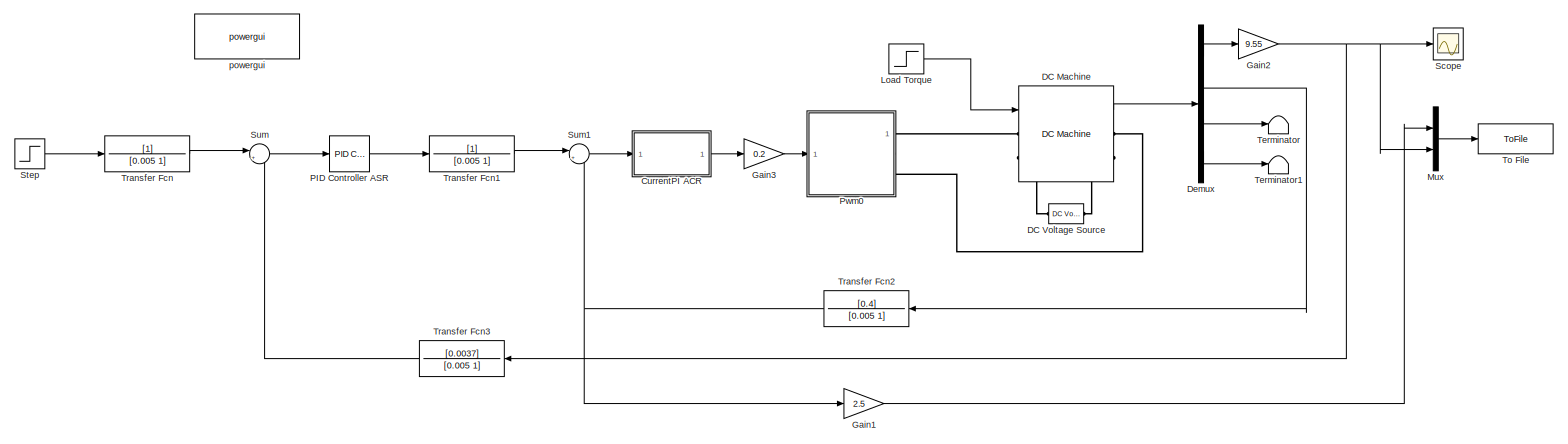
[diagram: root canvas - part 1/1, most of the canvas]
MODEL slx_1d7dbdc2e73e
KIND model
CONFIG AbsTol = auto
CONFIG EnableMultiTasking = off
CONFIG FixedStep = auto
CONFIG MaxStep = 5e-006
CONFIG MinStep = auto
CONFIG RelTol = 1e-3
CONFIG SampleTimeConstraint = Unconstrained
CONFIG Solver = ode23tb
CONFIG SolverName = ode23tb
CONFIG StartTime = 0.0
CONFIG StopTime = 4.0
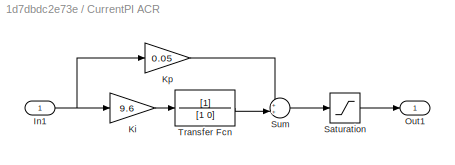
BLOCK [SubSystem] CurrentPI ACR
  Ports = [1, 1]
  RequestExecContextInheritance = off
BLOCK [Inport] CurrentPI ACR/In1
  IconDisplay = Port number
BLOCK [Gain] CurrentPI ACR/Ki 
  Gain = 9.6
  OutDataTypeStr = Inherit: Inherit via internal rule
  ParamDataTypeStr = Inherit: Inherit via internal rule
  SaturateOnIntegerOverflow = off
BLOCK [Gain] CurrentPI ACR/Kp
  Gain = 0.05
  OutDataTypeStr = Inherit: Inherit via internal rule
  ParamDataTypeStr = Inherit: Inherit via internal rule
  SaturateOnIntegerOverflow = off
BLOCK [Outport] CurrentPI ACR/Out1
  IconDisplay = Port number
BLOCK [Saturate] CurrentPI ACR/Saturation
  InputPortMap = u0
  LowerLimit = -5
  Ports = [1, 1]
  UpperLimit = 5
BLOCK [Sum] CurrentPI ACR/Sum
  IconShape = round
  InputSameDT = off
  Inputs = ++|
  OutDataTypeStr = Inherit: Inherit via internal rule
  Ports = [2, 1]
  SaturateOnIntegerOverflow = off
BLOCK [TransferFcn] CurrentPI ACR/Transfer Fcn
  Denominator = [1 0]
BLOCK [Reference] DC Machine  REF=powerlib/Machines/DC Machine
  Ports = [1, 1, 0, 0, 0, 2, 2]
  SourceBlock = powerlib/Machines/DC Machine
  SourceProductBaseCode = PS
  SourceProductName = Simscape Power Systems
  SourceType = DC machine
BLOCK [Reference] DC Voltage Source  REF=powerlib/Electrical
Sources/DC Voltage Source
  Ports = [0, 0, 0, 0, 0, 1, 1]
  SourceBlock = powerlib/Electrical\nSources/DC Voltage Source
  SourceProductBaseCode = PS
  SourceProductName = Simscape Power Systems
  SourceType = DC Voltage Source
BLOCK [Demux] Demux
  DisplayOption = bar
  Ports = [1, 4]
BLOCK [Gain] Gain1
  Gain = 2.5
  OutDataTypeStr = Inherit: Inherit via internal rule
  ParamDataTypeStr = Inherit: Inherit via internal rule
  SaturateOnIntegerOverflow = off
BLOCK [Gain] Gain2
  Gain = 9.55
  OutDataTypeStr = Inherit: Inherit via internal rule
  ParamDataTypeStr = Inherit: Inherit via internal rule
  SaturateOnIntegerOverflow = off
BLOCK [Gain] Gain3
  Gain = 0.2
  OutDataTypeStr = Inherit: Inherit via internal rule
  ParamDataTypeStr = Inherit: Inherit via internal rule
  SaturateOnIntegerOverflow = off
BLOCK [Step] Load Torque
  After = 12
  Before = 6
  SampleTime = 0
  Time = 3
BLOCK [Mux] Mux
  DisplayOption = bar
  Inputs = 2
  Ports = [2, 1]
BLOCK [Reference] PID Controller ASR  REF=simulink/Continuous/PID Controller
  Ports = [1, 1]
  SourceBlock = simulink/Continuous/PID Controller
  SourceProductBaseCode = SL
  SourceProductName = Simulink
  SourceType = PID 1dof
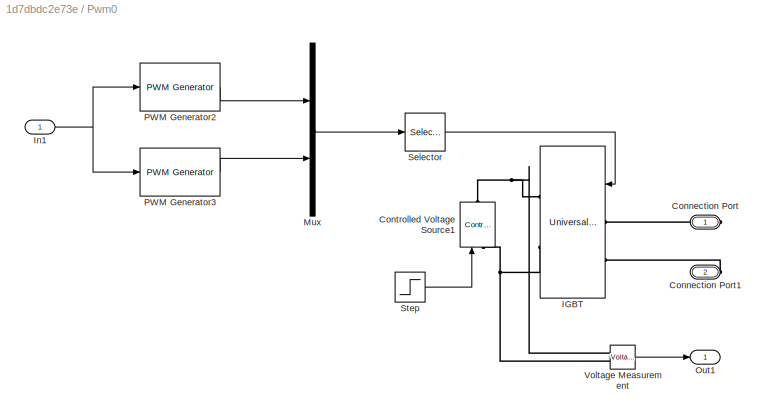
BLOCK [SubSystem] Pwm0
  Ports = [1, 1, 0, 0, 0, 0, 2]
  RequestExecContextInheritance = off
BLOCK [PMIOPort] Pwm0/Connection Port
  Side = Right
BLOCK [PMIOPort] Pwm0/Connection Port1
  Port = 2
  Side = Right
BLOCK [Reference] Pwm0/Controlled Voltage Source1  REF=powerlib/Electrical
Sources/Controlled Voltage Source
  Ports = [1, 0, 0, 0, 0, 1, 1]
  SourceBlock = powerlib/Electrical\nSources/Controlled Voltage Source
  SourceProductBaseCode = PS
  SourceProductName = Simscape Power Systems
  SourceType = Controlled Voltage Source
BLOCK [Reference] Pwm0/IGBT  REF=powerlib/Power
Electronics/Universal Bridge
  Ports = [1, 0, 0, 0, 0, 2, 2]
  SourceBlock = powerlib/Power\nElectronics/Universal Bridge
  SourceProductBaseCode = PS
  SourceProductName = Simscape Power Systems
  SourceType = Universal Bridge
BLOCK [Inport] Pwm0/In1
  IconDisplay = Port number
BLOCK [Mux] Pwm0/Mux
  DisplayOption = bar
  Inputs = 2
  Ports = [2, 1]
BLOCK [Outport] Pwm0/Out1
  IconDisplay = Port number
BLOCK [Reference] Pwm0/PWM Generator2  REF=powerlib_extras/Control 
Blocks/PWM Generator
  Ports = [1, 1]
  SourceBlock = powerlib_extras/Control \nBlocks/PWM Generator
  SourceType = PWM Generator
BLOCK [Reference] Pwm0/PWM Generator3  REF=powerlib_extras/Control 
Blocks/PWM Generator
  Ports = [1, 1]
  SourceBlock = powerlib_extras/Control \nBlocks/PWM Generator
  SourceType = PWM Generator
BLOCK [Selector] Pwm0/Selector
  IndexOptions = Index vector (dialog)
  Indices = [1 2 4 3]
  InputPortWidth = 4
  OutputSizes = 1
  Ports = [1, 1]
BLOCK [Step] Pwm0/Step
  After = 250
  SampleTime = 0
  Time = 0
BLOCK [Reference] Pwm0/Voltage Measurement  REF=powerlib/Measurements/Voltage Measurement
  Ports = [0, 1, 0, 0, 0, 2]
  SourceBlock = powerlib/Measurements/Voltage Measurement
  SourceProductBaseCode = PS
  SourceProductName = Simscape Power Systems
  SourceType = Voltage Measurement
  UserDataPersistent = on
BLOCK [Scope] Scope
  Floating = off
  NumInputPorts = 1
  Ports = [1]
  ScopeSpecificationString = Simulink.scopes.TimeScopeBlockCfg('CurrentConfiguration', extmgr.ConfigurationSet(extmgr.Configuration('Core','General UI',true),extmgr.Configuration('Core','Source UI',true),extmgr.Configuration('Sources','WiredSimulink',true),extmgr.Configuration('Visuals','Time Domain',true),extmgr.Configuration('Tools','Plot Navigation',true),extmgr.Configuration('Tools','Measurements',true)),'Version','2018a'...<+1ch>
BLOCK [Step] Step
  After = 5
  SampleTime = 0
  Time = 0
BLOCK [Sum] Sum
  IconShape = round
  InputSameDT = off
  Inputs = |+-
  OutDataTypeStr = Inherit: Inherit via internal rule
  Ports = [2, 1]
  SaturateOnIntegerOverflow = off
BLOCK [Sum] Sum1
  IconShape = round
  InputSameDT = off
  Inputs = |+-
  OutDataTypeStr = Inherit: Inherit via internal rule
  Ports = [2, 1]
  SaturateOnIntegerOverflow = off
BLOCK [Terminator] Terminator
BLOCK [Terminator] Terminator1
BLOCK [ToFile] To File
  Filename = 3_sim_n_Ia.mat
  MatrixName = signals
  Ports = [1]
BLOCK [TransferFcn] Transfer Fcn
  Denominator = [0.005 1]
BLOCK [TransferFcn] Transfer Fcn1
  Denominator = [0.005 1]
BLOCK [TransferFcn] Transfer Fcn2
  Denominator = [0.005 1]
  Numerator = [0.4]
BLOCK [TransferFcn] Transfer Fcn3
  Denominator = [0.005 1]
  Numerator = [0.0037]
BLOCK [Reference] powergui  REF=powerlib/powergui
  Ports = []
  Priority = 1
  SourceBlock = powerlib/powergui
  SourceProductBaseCode = PS
  SourceProductName = Simscape Power Systems
  SourceType = PSB option menu block
NET CurrentPI ACR/In1:1 -> CurrentPI ACR/Ki :1, CurrentPI ACR/Kp:1
LINE CurrentPI ACR/Ki :1 -> CurrentPI ACR/Transfer Fcn:1
LINE CurrentPI ACR/Kp:1 -> CurrentPI ACR/Sum:1
LINE CurrentPI ACR/Saturation:1 -> CurrentPI ACR/Out1:1
LINE CurrentPI ACR/Sum:1 -> CurrentPI ACR/Saturation:1
LINE CurrentPI ACR/Transfer Fcn:1 -> CurrentPI ACR/Sum:2
LINE CurrentPI ACR:1 -> Gain3:1
LINE DC Machine:1 -> Demux:1
LINE Demux:1 -> Gain2:1
LINE Demux:2 -> Transfer Fcn2:1
LINE Demux:3 -> Terminator:1
LINE Demux:4 -> Terminator1:1
LINE Gain1:1 -> Mux:1
NET Gain2:1 -> Mux:2, Scope:1, Transfer Fcn3:1
LINE Gain3:1 -> Pwm0:1
LINE Load Torque:1 -> DC Machine:1
LINE Mux:1 -> To File:1
LINE PID Controller ASR:1 -> Transfer Fcn1:1
NET Pwm0/In1:1 -> Pwm0/PWM Generator2:1, Pwm0/PWM Generator3:1
LINE Pwm0/Mux:1 -> Pwm0/Selector:1
LINE Pwm0/PWM Generator2:1 -> Pwm0/Mux:1
LINE Pwm0/PWM Generator3:1 -> Pwm0/Mux:2
LINE Pwm0/Selector:1 -> Pwm0/IGBT:1
LINE Pwm0/Step:1 -> Pwm0/Controlled Voltage Source1:1
LINE Pwm0/Voltage Measurement:1 -> Pwm0/Out1:1
LINE Step:1 -> Transfer Fcn:1
LINE Sum1:1 -> CurrentPI ACR:1
LINE Sum:1 -> PID Controller ASR:1
LINE Transfer Fcn1:1 -> Sum1:1
NET Transfer Fcn2:1 -> Gain1:1, Sum1:2
LINE Transfer Fcn3:1 -> Sum:2
LINE Transfer Fcn:1 -> Sum:1
PLINE DC Machine:LConn1 -- Pwm0:RConn1
PLINE DC Machine:LConn2 -- DC Voltage Source:RConn1
PLINE DC Machine:RConn1 -- Pwm0:RConn2
PLINE DC Machine:RConn2 -- DC Voltage Source:LConn1
PLINE Pwm0/Connection Port1:RConn1 -- Pwm0/IGBT:LConn2
PLINE Pwm0/Connection Port:RConn1 -- Pwm0/IGBT:LConn1
PNET net1: Pwm0/Controlled Voltage Source1:LConn1 -- Pwm0/IGBT:RConn2 -- Pwm0/Voltage Measurement:LConn2
PNET net2: Pwm0/Controlled Voltage Source1:RConn1 -- Pwm0/IGBT:RConn1 -- Pwm0/Voltage Measurement:LConn1
note: NET lines group one-source signal fan-out (src -> all destinations, sorted); 1:1 wires keep LINE; PNET lines group multi-terminal physical nets as a canonical sorted terminal list (undirected conserving connections); 2-terminal nets keep the pairwise PLINE form
